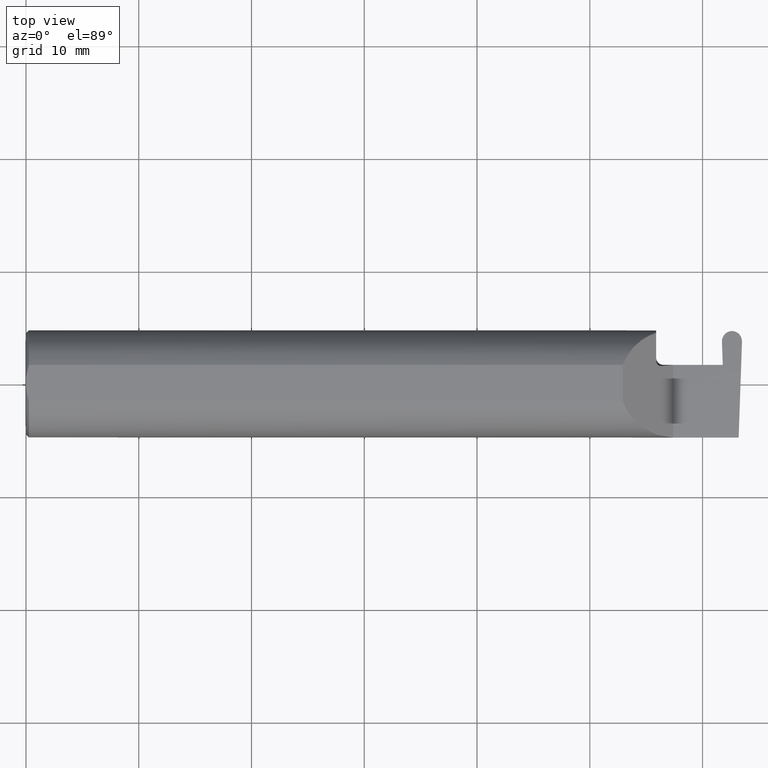
[diagram: clean part render]
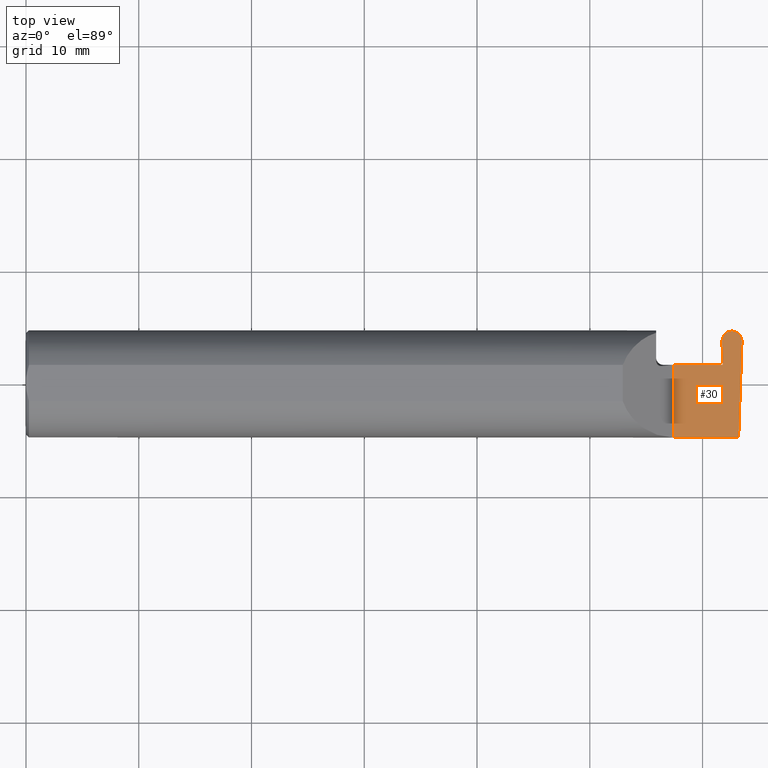
[diagram: same view with one face highlighted and labeled with its STEP entity id]
A machine part, top view. The second image highlights one B-rep face of the part: STEP entity #30.
In plain terms, the highlighted planar face has unit normal (-0, 0, -1).
Its self-contained STEP definition (entity closure, byte-faithful):
#9 = VECTOR ( 'NONE', #580, 39.37007874015748143 ) ;
#20 = VECTOR ( 'NONE', #191, 39.37007874015748143 ) ;
#24 = LINE ( 'NONE', #193, #43 ) ;
#30 = ADVANCED_FACE ( 'NONE', ( #190 ), #179, .F. ) ;
#40 = CARTESIAN_POINT ( 'NONE',  ( 2.200000000000000178, 0.06664999999999997315, 3.673940397442061963E-17 ) ) ;
#43 = VECTOR ( 'NONE', #137, 39.37007874015748143 ) ;
#50 = ORIENTED_EDGE ( 'NONE', *, *, #510, .F. ) ;
#72 = DIRECTION ( 'NONE',  ( -1.224646799147353947E-16, 0.000000000000000000, -1.000000000000000000 ) ) ;
#75 = VERTEX_POINT ( 'NONE', #672 ) ;
#84 = CARTESIAN_POINT ( 'NONE',  ( 2.499925463505881851, 0.1468259978756916162, 0.000000000000000000 ) ) ;
#92 = VERTEX_POINT ( 'NONE', #186 ) ;
#96 = CARTESIAN_POINT ( 'NONE',  ( 2.465246133078789814, 0.1846500000000000363, 0.000000000000000000 ) ) ;
#137 = DIRECTION ( 'NONE',  ( 1.000000000000000000, -0.000000000000000000, -0.000000000000000000 ) ) ;
#152 = CARTESIAN_POINT ( 'NONE',  ( 2.429150766615653101, 0.1688532867831435691, 8.647869142229363777E-18 ) ) ;
#153 = EDGE_CURVE ( 'NONE', #660, #92, #680, .T. ) ;
#170 = VERTEX_POINT ( 'NONE', #199 ) ;
#171 = CARTESIAN_POINT ( 'NONE',  ( 2.260000000000000231, -0.1873499999999999888, 2.939152317953647352E-17 ) ) ;
#173 = AXIS2_PLACEMENT_3D ( 'NONE', #238, #72, #461 ) ;
#179 = PLANE ( 'NONE',  #173 ) ;
#186 = CARTESIAN_POINT ( 'NONE',  ( 2.432719784034706123, 0.06664999999999998703, 0.000000000000000000 ) ) ;
#187 = EDGE_CURVE ( 'NONE', #92, #334, #261, .T. ) ;
#190 = FACE_OUTER_BOUND ( 'NONE', #694, .T. ) ;
#191 = DIRECTION ( 'NONE',  ( -0.000000000000000000, 1.000000000000000000, -0.000000000000000000 ) ) ;
#193 = CARTESIAN_POINT ( 'NONE',  ( -3.937007874019685528E-05, 0.1846500000000000363, 0.000000000000000000 ) ) ;
#198 = EDGE_CURVE ( 'NONE', #562, #244, #24, .T. ) ;
#199 = CARTESIAN_POINT ( 'NONE',  ( 2.488255780514392335, -0.1873499999999999888, 0.000000000000000000 ) ) ;
#213 = CARTESIAN_POINT ( 'NONE',  ( 2.464599306921210875, 0.1846500000000000363, 0.000000000000000000 ) ) ;
#219 = LINE ( 'NONE', #40, #466 ) ;
#224 = CARTESIAN_POINT ( 'NONE',  ( 2.429919976494118838, 0.1468259978756916995, 0.000000000000000000 ) ) ;
#229 = ORIENTED_EDGE ( 'NONE', *, *, #448, .F. ) ;
#231 = CARTESIAN_POINT ( 'NONE',  ( 2.260000000000000231, 0.06664999999999991764, 2.939152317953647352E-17 ) ) ;
#238 = CARTESIAN_POINT ( 'NONE',  ( 2.500000000000000000, -0.2500000000000000555, 0.000000000000000000 ) ) ;
#243 = ORIENTED_EDGE ( 'NONE', *, *, #198, .F. ) ;
#244 = VERTEX_POINT ( 'NONE', #96 ) ;
#253 = ORIENTED_EDGE ( 'NONE', *, *, #566, .F. ) ;
#256 = LINE ( 'NONE', #432, #673 ) ;
#261 = LINE ( 'NONE', #419, #422 ) ;
#263 = CARTESIAN_POINT ( 'NONE',  ( 2.500694673384347144, 0.1688532867831435136, 4.157668328071865437E-18 ) ) ;
#266 = ORIENTED_EDGE ( 'NONE', *, *, #700, .F. ) ;
#271 = DIRECTION ( 'NONE',  ( 1.000000000000000000, 5.199944350551892858E-16, 0.000000000000000000 ) ) ;
#282 = CARTESIAN_POINT ( 'NONE',  ( 2.423599133234680458, 0.06664999999999991764, 0.000000000000000000 ) ) ;
#285 = VECTOR ( 'NONE', #569, 39.37007874015748143 ) ;
#310 = CARTESIAN_POINT ( 'NONE',  ( 2.432719784034706123, 0.06664999999999998703, 0.000000000000000000 ) ) ;
#317 =( BOUNDED_CURVE ( )  B_SPLINE_CURVE ( 3, ( #84, #263, #591, #360 ),
 .UNSPECIFIED., .F., .F. ) 
 B_SPLINE_CURVE_WITH_KNOTS ( ( 4, 4 ),
 ( 1.627103621474502271, 3.225696776093226248 ),
 .UNSPECIFIED. ) 
 CURVE ( )  GEOMETRIC_REPRESENTATION_ITEM ( )  RATIONAL_B_SPLINE_CURVE ( ( 1.000000000000000000, 0.7981407609938082626, 0.7981407609938082626, 1.000000000000000000 ) ) 
 REPRESENTATION_ITEM ( '' )  );
#334 = VERTEX_POINT ( 'NONE', #601 ) ;
#360 = CARTESIAN_POINT ( 'NONE',  ( 2.465246133078789814, 0.1846500000000000363, 0.000000000000000000 ) ) ;
#373 = VERTEX_POINT ( 'NONE', #171 ) ;
#419 = CARTESIAN_POINT ( 'NONE',  ( 2.429866808131219802, 0.1483485405823075642, 0.000000000000000000 ) ) ;
#422 = VECTOR ( 'NONE', #630, 39.37007874015748854 ) ;
#432 = CARTESIAN_POINT ( 'NONE',  ( 3.749399456654646757E-32, -0.1873499999999999610, 3.061616997868383634E-16 ) ) ;
#440 = VERTEX_POINT ( 'NONE', #231 ) ;
#448 = EDGE_CURVE ( 'NONE', #75, #170, #456, .T. ) ;
#456 = LINE ( 'NONE', #663, #285 ) ;
#461 = DIRECTION ( 'NONE',  ( -1.000000000000000000, 0.000000000000000000, 1.224646799147353947E-16 ) ) ;
#466 = VECTOR ( 'NONE', #271, 39.37007874015748143 ) ;
#478 = LINE ( 'NONE', #679, #20 ) ;
#481 = CARTESIAN_POINT ( 'NONE',  ( 2.464599306921210875, 0.1846500000000000363, 0.000000000000000000 ) ) ;
#487 = EDGE_CURVE ( 'NONE', #75, #244, #317, .T. ) ;
#510 = EDGE_CURVE ( 'NONE', #373, #440, #478, .T. ) ;
#512 = ORIENTED_EDGE ( 'NONE', *, *, #153, .F. ) ;
#554 = CARTESIAN_POINT ( 'NONE',  ( 2.443634147710784355, 0.1846500000000000641, 6.874166512331093267E-18 ) ) ;
#562 = VERTEX_POINT ( 'NONE', #481 ) ;
#566 = EDGE_CURVE ( 'NONE', #170, #373, #256, .T. ) ;
#569 = DIRECTION ( 'NONE',  ( -0.03489949670249533481, -0.9993908270190959842, 0.000000000000000000 ) ) ;
#580 = DIRECTION ( 'NONE',  ( 1.000000000000000000, 7.488084056613103845E-15, -0.000000000000000000 ) ) ;
#584 = DIRECTION ( 'NONE',  ( -1.000000000000000000, -0.000000000000000000, -0.000000000000000000 ) ) ;
#590 =( BOUNDED_CURVE ( )  B_SPLINE_CURVE ( 3, ( #213, #554, #152, #224 ),
 .UNSPECIFIED., .F., .F. ) 
 B_SPLINE_CURVE_WITH_KNOTS ( ( 4, 4 ),
 ( 3.057488531086361760, 4.656081685705084183 ),
 .UNSPECIFIED. ) 
 CURVE ( )  GEOMETRIC_REPRESENTATION_ITEM ( )  RATIONAL_B_SPLINE_CURVE ( ( 1.000000000000000000, 0.7981407609938087067, 0.7981407609938087067, 1.000000000000000000 ) ) 
 REPRESENTATION_ITEM ( '' )  );
#591 = CARTESIAN_POINT ( 'NONE',  ( 2.486211292289216335, 0.1846500000000000641, 5.931370957970135947E-18 ) ) ;
#601 = CARTESIAN_POINT ( 'NONE',  ( 2.429919976494118838, 0.1468259978756916995, 0.000000000000000000 ) ) ;
#629 = EDGE_CURVE ( 'NONE', #562, #334, #590, .T. ) ;
#630 = DIRECTION ( 'NONE',  ( -0.03489949670249273966, 0.9993908270190959842, -0.000000000000000000 ) ) ;
#650 = ORIENTED_EDGE ( 'NONE', *, *, #629, .T. ) ;
#654 = ORIENTED_EDGE ( 'NONE', *, *, #487, .T. ) ;
#660 = VERTEX_POINT ( 'NONE', #282 ) ;
#663 = CARTESIAN_POINT ( 'NONE',  ( 2.499978631868781331, 0.1483485405823076198, 0.000000000000000000 ) ) ;
#672 = CARTESIAN_POINT ( 'NONE',  ( 2.499925463505881851, 0.1468259978756916162, 0.000000000000000000 ) ) ;
#673 = VECTOR ( 'NONE', #584, 39.37007874015748143 ) ;
#679 = CARTESIAN_POINT ( 'NONE',  ( 2.260000000000000231, -0.2500000000000000555, 2.939152317953647352E-17 ) ) ;
#680 = LINE ( 'NONE', #310, #9 ) ;
#694 = EDGE_LOOP ( 'NONE', ( #243, #650, #698, #512, #266, #50, #253, #229, #654 ) ) ;
#698 = ORIENTED_EDGE ( 'NONE', *, *, #187, .F. ) ;
#700 = EDGE_CURVE ( 'NONE', #440, #660, #219, .T. ) ;